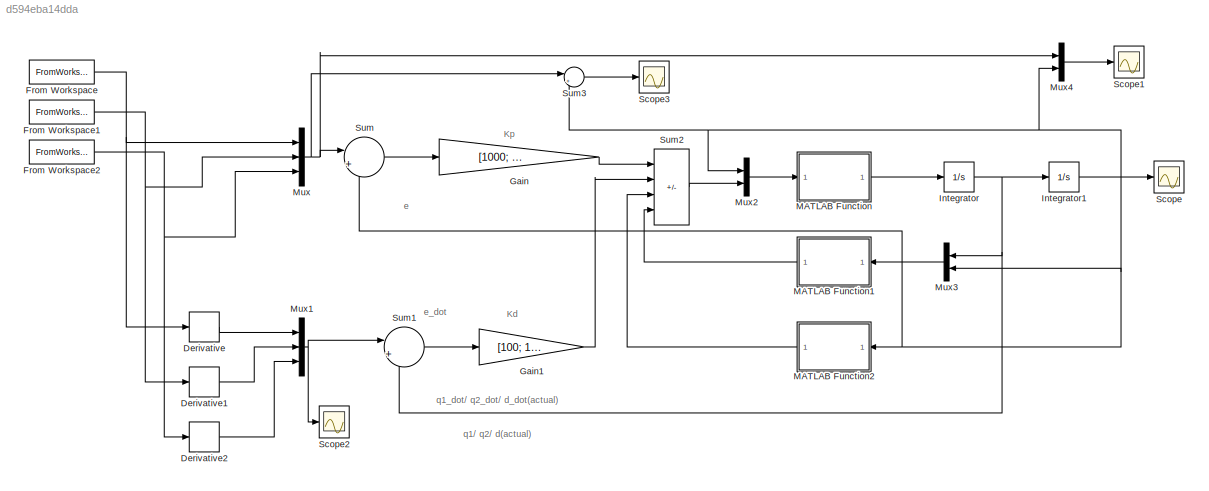
MODEL slx_d594eba14dda
KIND model
CONFIG AbsTol = auto
CONFIG EnableMultiTasking = off
CONFIG FixedStep = 0.01
CONFIG MaxStep = auto
CONFIG MinStep = auto
CONFIG RelTol = 1e-3
CONFIG SampleTimeConstraint = Unconstrained
CONFIG SolverName = VariableStepAuto
CONFIG StartTime = 0.0
CONFIG StopTime = T+1
BLOCK [Derivative] Derivative
BLOCK [Derivative] Derivative1
BLOCK [Derivative] Derivative2
BLOCK [FromWorkspace] From Workspace
  SampleTime = 0.002
  VariableName = Theta1
BLOCK [FromWorkspace] From Workspace1
  SampleTime = 0.002
  VariableName = Theta2
BLOCK [FromWorkspace] From Workspace2
  SampleTime = 0.002
  VariableName = Dist3
BLOCK [Gain] Gain
  Gain = [1000; 1000; 300]
BLOCK [Gain] Gain1
  Gain = [100; 100; 50]
BLOCK [Integrator] Integrator
  InitialCondition = [0;0;0]
BLOCK [Integrator] Integrator1
  InitialCondition = [0; 0; 0]
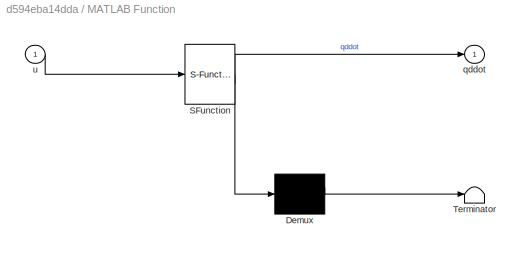
BLOCK [SubSystem] MATLAB Function
  ErrorFcn = Stateflow.Translate.translate
  LibrarySourceBlock = simulink/User-Defined\nFunctions/MATLAB Function
  PermitHierarchicalResolution = ExplicitOnly
  SFBlockType = MATLAB Function
  TreatAsAtomicUnit = on
BLOCK [Demux] MATLAB Function/ Demux 
  Outputs = 1
BLOCK [S-Function] MATLAB Function/ SFunction 
  EnableBusSupport = on
  FunctionName = sf_sfun
  PortCounts = [1 2]
  SFcnIsStateOwnerBlock = off
  SFunctionDeploymentMode = off
  Tag = Stateflow S-Function 2
BLOCK [Terminator] MATLAB Function/ Terminator 
BLOCK [Outport] MATLAB Function/qddot
BLOCK [Inport] MATLAB Function/u
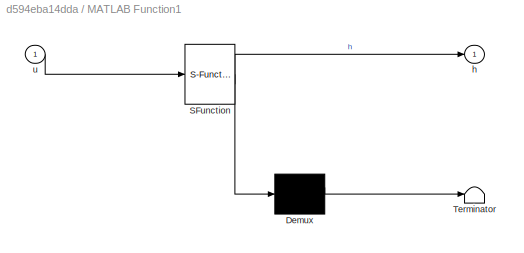
BLOCK [SubSystem] MATLAB Function1
  ErrorFcn = Stateflow.Translate.translate
  LibrarySourceBlock = simulink/User-Defined\nFunctions/MATLAB Function
  NameLocation = top
  PermitHierarchicalResolution = ExplicitOnly
  SFBlockType = MATLAB Function
  TreatAsAtomicUnit = on
BLOCK [Demux] MATLAB Function1/ Demux 
  Outputs = 1
BLOCK [S-Function] MATLAB Function1/ SFunction 
  EnableBusSupport = on
  FunctionName = sf_sfun
  PortCounts = [1 2]
  SFcnIsStateOwnerBlock = off
  SFunctionDeploymentMode = off
  Tag = Stateflow S-Function 1
BLOCK [Terminator] MATLAB Function1/ Terminator 
BLOCK [Outport] MATLAB Function1/h
BLOCK [Inport] MATLAB Function1/u
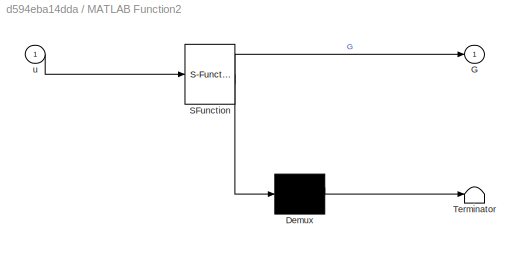
BLOCK [SubSystem] MATLAB Function2
  ErrorFcn = Stateflow.Translate.translate
  LibrarySourceBlock = simulink/User-Defined\nFunctions/MATLAB Function
  NameLocation = top
  PermitHierarchicalResolution = ExplicitOnly
  SFBlockType = MATLAB Function
  TreatAsAtomicUnit = on
BLOCK [Demux] MATLAB Function2/ Demux 
  Outputs = 1
BLOCK [S-Function] MATLAB Function2/ SFunction 
  EnableBusSupport = on
  FunctionName = sf_sfun
  PortCounts = [1 2]
  SFcnIsStateOwnerBlock = off
  SFunctionDeploymentMode = off
  Tag = Stateflow S-Function 3
BLOCK [Terminator] MATLAB Function2/ Terminator 
BLOCK [Outport] MATLAB Function2/G
BLOCK [Inport] MATLAB Function2/u
BLOCK [Mux] Mux
  DisplayOption = bar
  Inputs = 3
BLOCK [Mux] Mux1
  DisplayOption = bar
  Inputs = 3
BLOCK [Mux] Mux2
  DisplayOption = bar
  Inputs = 2
BLOCK [Mux] Mux3
  DisplayOption = bar
  Inputs = 2
  NameLocation = top
BLOCK [Mux] Mux4
  DisplayOption = bar
  Inputs = 2
BLOCK [Scope] Scope
  Floating = off
  NumInputPorts = 1
  ScopeSpecificationString = Simulink.scopes.TimeScopeBlockCfg('CurrentConfiguration', extmgr.ConfigurationSet(extmgr.Configuration('Core','General UI',true),extmgr.Configuration('Core','Source UI',true),extmgr.Configuration('Sources','WiredSimulink',true),extmgr.Configuration('Visuals','Time Domain',true,'SerializedDisplays',{struct('MinYLimReal','-1.43535','MaxYLimReal','1.4481','YLabelReal','','MinYLimMag','0.00000','MaxYL...<+1507ch>
BLOCK [Scope] Scope1
  Floating = off
  NumInputPorts = 1
  ScopeSpecificationString = Simulink.scopes.TimeScopeBlockCfg('CurrentConfiguration', extmgr.ConfigurationSet(extmgr.Configuration('Core','General UI',true),extmgr.Configuration('Core','Source UI',true),extmgr.Configuration('Sources','WiredSimulink',true,'DataLoggingVariableName','ScopeData1'),extmgr.Configuration('Visuals','Time Domain',true,'SerializedDisplays',{struct('MinYLimReal','-1.49178','MaxYLimReal','1.66593','YLab...<+1747ch>
BLOCK [Scope] Scope2
  Floating = off
  NumInputPorts = 1
  ScopeSpecificationString = Simulink.scopes.TimeScopeBlockCfg('CurrentConfiguration', extmgr.ConfigurationSet(extmgr.Configuration('Core','General UI',true),extmgr.Configuration('Core','Source UI',true),extmgr.Configuration('Sources','WiredSimulink',true,'DataLoggingVariableName','ScopeData2'),extmgr.Configuration('Visuals','Time Domain',true,'SerializedDisplays',{struct('MinYLimReal','-26.41402','MaxYLimReal','22.34681','YL...<+1403ch>
BLOCK [Scope] Scope3
  Floating = off
  NumInputPorts = 1
  ScopeSpecificationString = Simulink.scopes.TimeScopeBlockCfg('CurrentConfiguration', extmgr.ConfigurationSet(extmgr.Configuration('Core','General UI',true),extmgr.Configuration('Core','Source UI',true),extmgr.Configuration('Sources','WiredSimulink',true,'DataLoggingVariableName','ScopeData1'),extmgr.Configuration('Visuals','Time Domain',true,'SerializedDisplays',{struct('MinYLimReal','-0.19077','MaxYLimReal','0.15466','YLab...<+1455ch>
BLOCK [Sum] Sum
  Inputs = |+-
BLOCK [Sum] Sum1
  Inputs = |+-
BLOCK [Sum] Sum2
  IconShape = rectangular
  Inputs = ++--
BLOCK [Sum] Sum3
  Inputs = |+-
ANNOTATION (root): q1/ q2/ d(actual)
ANNOTATION (root): q1_dot/ q2_dot/ d_dot(actual)
ANNOTATION (root): Kd
ANNOTATION (root): Kp
ANNOTATION (root): e
ANNOTATION (root): e_dot
LINE Derivative1:1 -> Mux1:2
LINE Derivative2:1 -> Mux1:3
LINE Derivative:1 -> Mux1:1
NET From Workspace1:1 -> Derivative1:1, Mux:2
NET From Workspace2:1 -> Derivative2:1, Mux:3
NET From Workspace:1 -> Derivative:1, Mux:1
LINE Gain1:1 -> Sum2:2
LINE Gain:1 -> Sum2:1
NET Integrator1:1 -> MATLAB Function2:1, Mux2:1, Mux3:2, Mux4:2, Scope:1, Sum3:2, Sum:2
NET Integrator:1 -> Integrator1:1, Mux3:1, Sum1:2
LINE MATLAB Function1:1 -> Sum2:4
LINE MATLAB Function2:1 -> Sum2:3
LINE MATLAB Function:1 -> Integrator:1
NET Mux1:1 -> Scope2:1, Sum1:1
LINE Mux2:1 -> MATLAB Function:1
LINE Mux3:1 -> MATLAB Function1:1
LINE Mux4:1 -> Scope1:1
NET Mux:1 -> Mux4:1, Sum3:1, Sum:1
LINE Sum1:1 -> Gain1:1
LINE Sum2:1 -> Mux2:2
LINE Sum3:1 -> Scope3:1
LINE Sum:1 -> Gain:1
note: NET lines group one-source signal fan-out (src -> all destinations, sorted); 1:1 wires keep LINE
CHART MATLAB Function states=1 transitions=1
  STATE_LABEL 'eML_blk_kernel()'
  STATE_LABEL 'SCRIPT:\nfunction qddot = Dinv(u)\nm1=1; m2=1; m3=1; l1=1; l2=1;\nq1=u(1); q2=u(2); d=u(3);\n\nth1 = q1; th2 = q2;\n\n% U\nU11 = [-sin(th1) -cos(th1) 0 -l1*sin(th1); cos(th1) -sin(th1) 0 l1*cos(th1);\n        0 0 0 0; 0 0 0 0];\nU21 = [-sin(th1+th2) cos(th1+th2) 0 -l1*sin(th1)-l2*sin(th1+th2); \n        cos(th1+th2) sin(th1+th2) 0 l1*cos(th1)+l2*cos(th1+th2); 0 0 0 0; 0 0 0 0];\nU22 = [-sin(th1+th2) cos(th1+t...<+1228ch>'
CHART MATLAB Function2 states=1 transitions=1
  STATE_LABEL 'eML_blk_kernel()'
  STATE_LABEL 'SCRIPT:\nfunction G = Gravity(u)\n\nm1=1; m2=1; m3=1; l1=1; l2=1; g=9.8;\nq1= u(1); q2=u(2); d=u(3);\n\n\nth1 = q1; th2 = q2;\n% U\nU11 = [-sin(th1) -cos(th1) 0 -l1*sin(th1); cos(th1) -sin(th1) 0 l1*cos(th1);\n        0 0 0 0; 0 0 0 0];\nU21 = [-sin(th1+th2) cos(th1+th2) 0 -l1*sin(th1)-l2*sin(th1+th2); \n        cos(th1+th2) sin(th1+th2) 0 l1*cos(th1)+l2*cos(th1+th2); 0 0 0 0; 0 0 0 0];\nU22 = [-sin(th1+th2) c...<+685ch>'
CHART MATLAB Function1 states=1 transitions=1
  STATE_LABEL 'eML_blk_kernel()'
  STATE_LABEL 'SCRIPT:\nfunction h = Coriolis(u)\n\ndotq1=u(1); dotq2=u(2); dotd=u(3); q1=u(4); q2=u(5); d=u(6);\nm1=1; m2=1; m3=1; l1=1; l2=1;\n\nth1 = q1; th2 = q2;\nth_p1 = dotq1; th_p2 = dotq2;\nA01 = [cos(th1) -sin(th1) 0 l1*cos(th1); sin(th1) cos(th1) 0 l1*sin(th1);\n            0 0 1 0; 0 0 0 1];\nA12 = [cos(th2) sin(th2) 0 l2*cos(th2); sin(th2) -cos(th2) 0 l2*sin(th2);\n        0 0 -1 0; 0 0 0 1];\nA23 = [1 0 0 0; 0...<+2077ch>'
CHART  states=0 transitions=0
CHART  states=0 transitions=0
CHART  states=0 transitions=0
